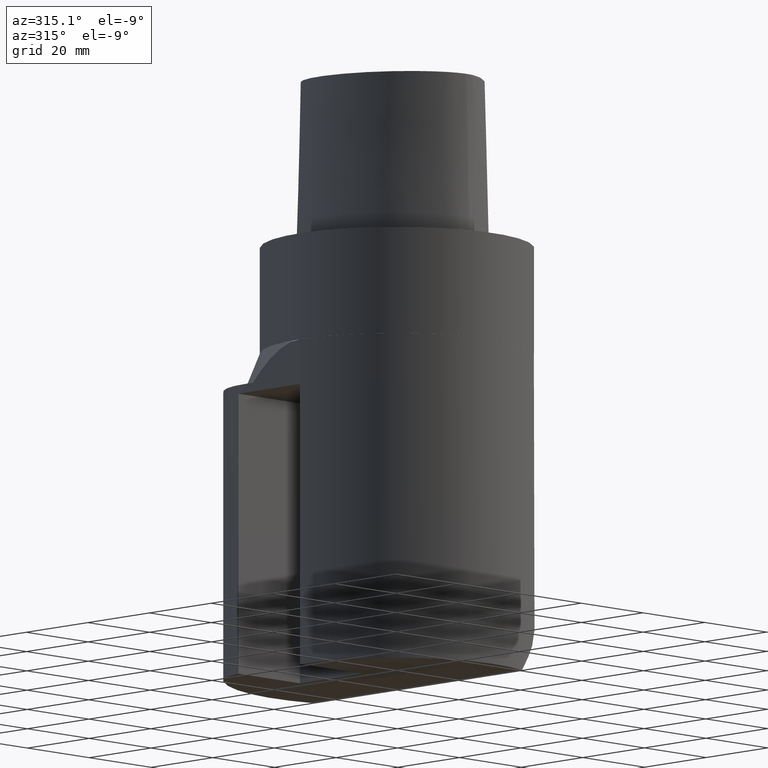
[diagram: clean part render]
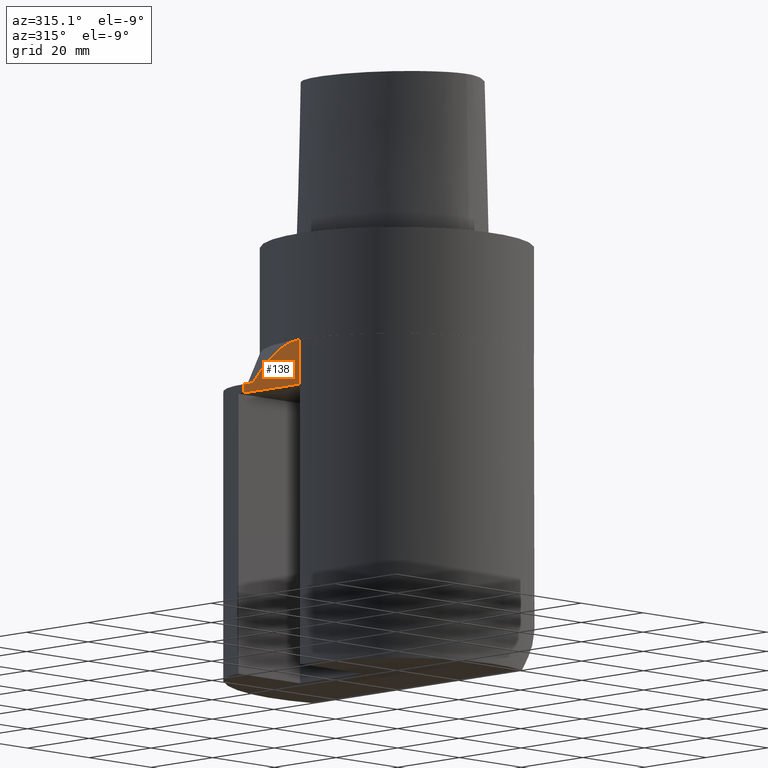
[diagram: same view with one face highlighted and labeled with its STEP entity id]
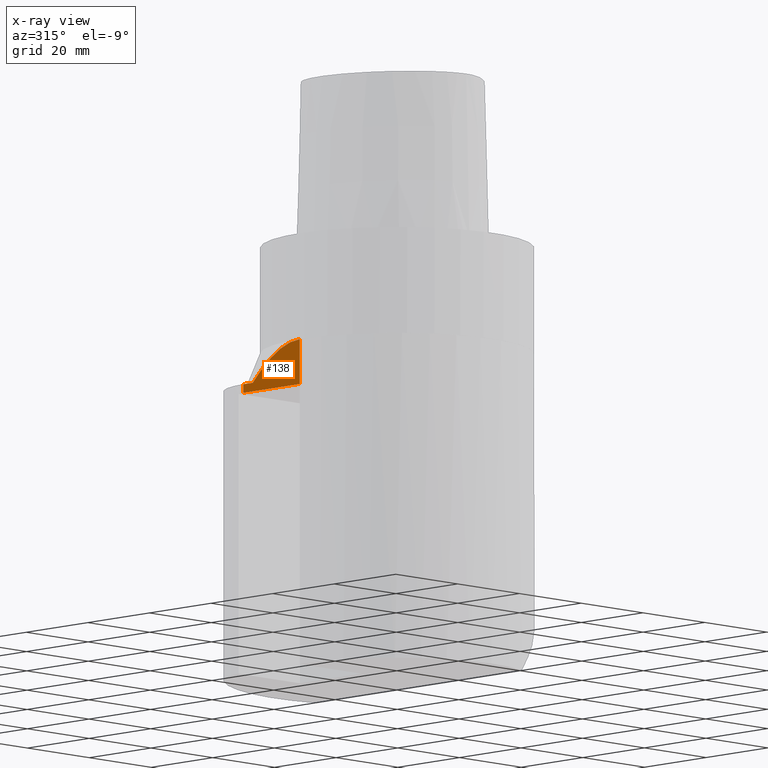
[diagram: x-ray of the same camera — body ghosted, the highlighted face saturated]
A machine part, auxiliary view. The second image highlights one B-rep face of the part: STEP entity #138.
The next image is the same camera in x-ray: the body ghosted, the highlighted face saturated — about 0% of this face is hidden behind the body in this view.
In plain terms, the highlighted planar face has unit normal (-1, -0, -0).
Its self-contained STEP definition (entity closure, byte-faithful):
#109=EDGE_CURVE('240[2]',#292,#293,#294,.T.);
#116=EDGE_CURVE('240[2]',#304,#292,#305,.T.);
#121=EDGE_CURVE('240[2]',#311,#312,#313,.T.);
#138=ADVANCED_FACE('240[2]',(#337),#338,.T.);
#140=EDGE_CURVE('240[2]',#312,#293,#340,.T.);
#242=EDGE_CURVE('240[2]',#311,#304,#467,.T.);
#292=VERTEX_POINT('',#516);
#293=VERTEX_POINT('',#517);
#294=LINE('',#518,#519);
#304=VERTEX_POINT('',#533);
#305=(B_SPLINE_CURVE(2,(#535,#536,#537),.UNSPECIFIED.,.F.,.F.)B_SPLINE_CURVE_WITH_KNOTS((3,3),(17.4185009161124,34.8370018322249),.UNSPECIFIED.)RATIONAL_B_SPLINE_CURVE((1.05555555555563,1.05555555555563,1.0))BOUNDED_CURVE()REPRESENTATION_ITEM('')GEOMETRIC_REPRESENTATION_ITEM()CURVE());
#311=VERTEX_POINT('',#551);
#312=VERTEX_POINT('',#552);
#313=LINE('',#553,#554);
#337=FACE_OUTER_BOUND('',#673,.T.);
#338=PLANE('',#674);
#340=LINE('',#677,#678);
#467=LINE('',#1009,#1010);
#516=CARTESIAN_POINT('',(-31.5000000000005,15.2561463024038,-32.9999999999964));
#517=CARTESIAN_POINT('',(-31.5000000000005,18.323482201808,-32.9999999999964));
#518=CARTESIAN_POINT('',(-31.5000000000006,23.3308705504531,-32.9999999999964));
#519=VECTOR('',#1078,1.0);
#533=CARTESIAN_POINT('',(-31.5000000000003,-3.97903932025656E-013,-24.5943962641397));
#535=CARTESIAN_POINT('',(-31.5000000000003,-3.9252811527481E-013,-24.5943962641397));
#536=CARTESIAN_POINT('',(-31.5000000000004,7.22659561692732,-24.5943962641397));
#537=CARTESIAN_POINT('',(-31.5000000000005,15.2561463024037,-32.9999999999964));
#551=CARTESIAN_POINT('',(-31.5000000000002,-5.15078432459043E-013,-34.9999998226051));
#552=CARTESIAN_POINT('',(-31.5000000000005,18.3234822018079,-34.9999998226051));
#553=CARTESIAN_POINT('',(-31.5000000000003,4.48087055045164,-34.9999998226051));
#554=VECTOR('',#1094,1.0);
#673=EDGE_LOOP('',(#1105,#1106,#1107,#1108,#1109));
#674=AXIS2_PLACEMENT_3D('',#1110,#1111,#1112);
#677=CARTESIAN_POINT('',(-31.5000000000005,18.3234822018079,-244.999999822605));
#678=VECTOR('',#1113,1.0);
#1009=CARTESIAN_POINT('',(-31.5000000000003,-4.2632564145606E-013,-244.999999822605));
#1010=VECTOR('',#1269,1.0);
#1078=DIRECTION('',(-1.25313328709615E-014,1.0,-1.22464679914736E-016));
#1094=DIRECTION('',(-1.25313328709615E-014,1.0,-1.22464679914736E-016));
#1105=ORIENTED_EDGE('',*,*,#109,.T.);
#1106=ORIENTED_EDGE('',*,*,#140,.F.);
#1107=ORIENTED_EDGE('',*,*,#121,.F.);
#1108=ORIENTED_EDGE('',*,*,#242,.T.);
#1109=ORIENTED_EDGE('',*,*,#116,.T.);
#1110=CARTESIAN_POINT('',(-31.5000000000004,9.16174110090378,-244.999999822605));
#1111=DIRECTION('',(-1.0,-1.25313328709615E-014,-6.12323399573662E-017));
#1112=DIRECTION('',(-6.12323399573662E-017,0.0,1.0));
#1113=DIRECTION('',(-6.12323399573677E-017,1.22464679914735E-016,1.0));
#1269=DIRECTION('',(-6.12323399573677E-017,1.22464679914735E-016,1.0));